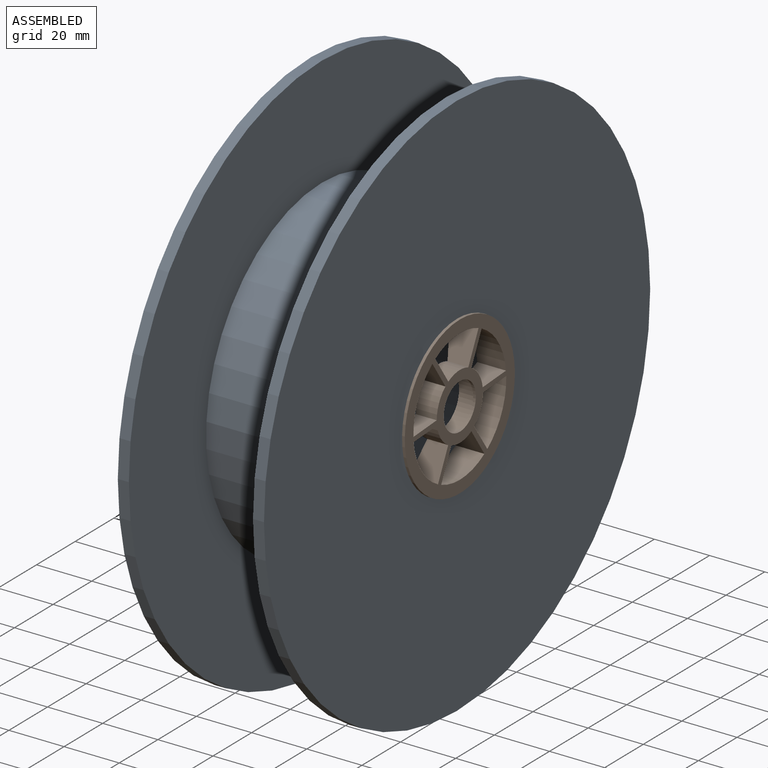
[diagram: assembled view]
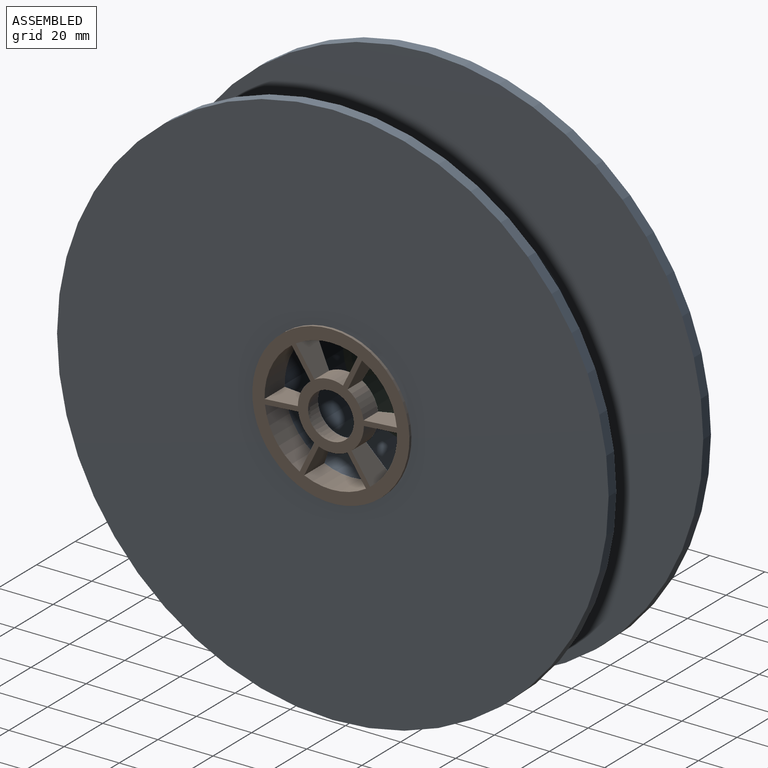
[diagram: assembled view, second angle]
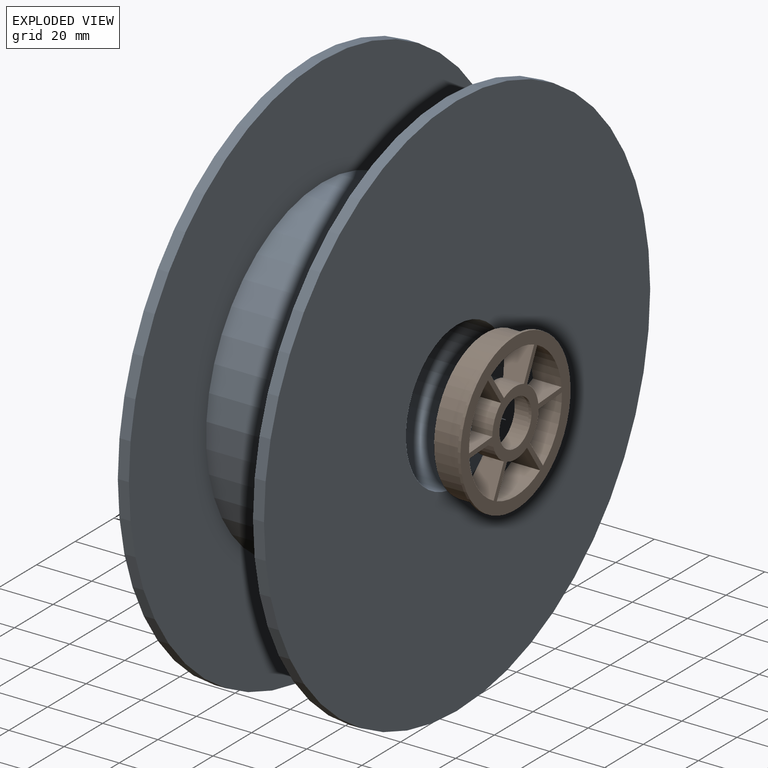
[diagram: exploded view]
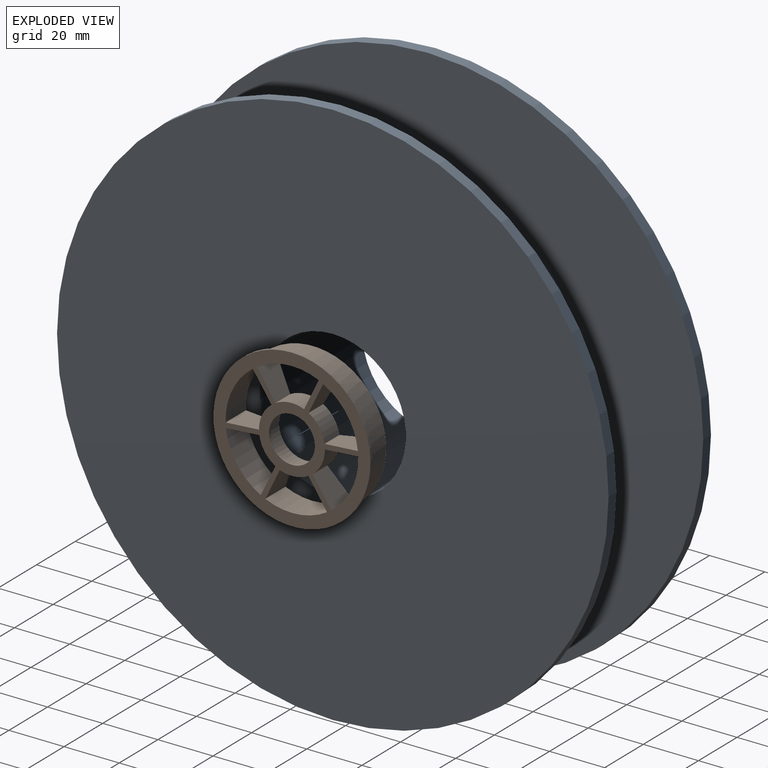
[diagram: exploded view, second angle]
ASSEMBLY  parts=3 mates=4
PART A: 8 faces, bbox 53x200x200 mm
  f0: cylinder r=100mm len=200mm, axis (-1,0,0), area 2513.3mm2, adj f1,f3
  f1: plane 200x200mm, normal (1,0,0), area 29209.7mm2, adj f0,f7
  f2: cylinder r=60mm len=120mm, axis (-1,0,0), area 16964.6mm2, adj f3,f4
  f3: plane 200x200mm, normal (-1,0,0), area 20106.2mm2, adj f0,f2
  f4: plane 200x200mm, normal (1,0,0), area 20106.2mm2, adj f2,f6
  f5: plane 200x200mm, normal (-1,0,0), area 29209.7mm2, adj f6,f7
  f6: cylinder r=100mm len=200mm, axis (-1,0,0), area 2513.3mm2, adj f4,f5
  f7: cylinder r=26.5mm len=53mm, axis (1,0,0), area 8824.7mm2, adj f1,f5
PART B: 32 faces, bbox 11.2x57.2x57.2 mm
  f0: cylinder r=26.45mm len=52.9mm, axis (1,0,0), area 1659.9mm2, adj f28,f31
  f1: cylinder r=9.57mm len=19.15mm, axis (1,0,0), area 361.3mm2, adj f29,f31
  f2: plane 12.32x10.65mm, normal (0,1,0), area 108.8mm2, adj f3,f5,f26,f31
  f3: cylinder r=11.97mm len=8.99mm, axis (-1,0,0), area 81.3mm2, adj f2,f4,f26,f31
  f4: plane 10.7x10.65mm, normal (0,-0.5,-0.87), area 108.8mm2, adj f3,f5,f26,f31
  f5: cylinder r=24.05mm len=19.46mm, axis (-1,0,0), area 243.7mm2, adj f2,f4,f26,f31
  f6: cylinder r=11.97mm len=10.38mm, axis (-1,0,0), area 81.3mm2, adj f7,f9,f26,f31
  f7: plane 10.7x10.65mm, normal (0,0.5,-0.87), area 108.8mm2, adj f6,f8,f26,f31
  f8: cylinder r=24.05mm len=22.47mm, axis (-1,0,0), area 243.7mm2, adj f7,f9,f26,f31
  f9: plane 10.7x10.65mm, normal (0,0.5,0.87), area 108.8mm2, adj f6,f8,f26,f31
  f10: cylinder r=11.97mm len=10.38mm, axis (-1,0,0), area 81.3mm2, adj f11,f13,f26,f31
  f11: plane 10.7x10.65mm, normal (0,-0.5,0.87), area 108.8mm2, adj f10,f12,f26,f31
  f12: cylinder r=24.05mm len=22.47mm, axis (-1,0,0), area 243.7mm2, adj f11,f13,f26,f31
  f13: plane 10.7x10.65mm, normal (0,-0.5,-0.87), area 108.8mm2, adj f10,f12,f26,f31
  f14: cylinder r=11.97mm len=8.99mm, axis (-1,0,0), area 81.3mm2, adj f15,f17,f26,f31
  f15: plane 12.32x10.65mm, normal (0,-1,0), area 108.8mm2, adj f14,f16,f26,f31
  f16: cylinder r=24.05mm len=19.46mm, axis (-1,0,0), area 243.7mm2, adj f15,f17,f26,f31
  f17: plane 10.7x10.65mm, normal (0,0.5,-0.87), area 108.8mm2, adj f14,f16,f26,f31
  f18: cylinder r=11.97mm len=8.99mm, axis (-1,0,0), area 81.3mm2, adj f19,f21,f26,f31
  f19: plane 10.7x10.65mm, normal (0,0.5,0.87), area 108.8mm2, adj f18,f20,f26,f31
  f20: cylinder r=24.05mm len=19.46mm, axis (-1,0,0), area 243.7mm2, adj f19,f21,f26,f31
  f21: plane 12.32x10.65mm, normal (0,-1,0), area 108.8mm2, adj f18,f20,f26,f31
  f22: cylinder r=11.97mm len=8.99mm, axis (-1,0,0), area 81.3mm2, adj f23,f25,f26,f31
  f23: plane 12.32x10.65mm, normal (0,1,0), area 108.8mm2, adj f22,f24,f26,f31
  f24: cylinder r=24.05mm len=19.46mm, axis (-1,0,0), area 243.7mm2, adj f23,f25,f26,f31
  f25: plane 10.7x10.65mm, normal (0,-0.5,0.87), area 108.8mm2, adj f22,f24,f26,f31
  f26: plane 57x57mm, normal (1,0,0), area 1099.2mm2, adj f2,f3,f4,f5,f6,f7,f8,f9
  f27: cylinder r=28.5mm len=57mm, axis (-1,0,0), area 179.1mm2, adj f26,f28
  f28: plane 57x57mm, normal (-1,0,0), area 353.9mm2, adj f0,f27
  f29: plane 19.15x19.15mm, normal (-1,0,0), area 71.6mm2, adj f1,f30
  f30: cylinder r=8.3mm len=16.6mm, axis (-1,0,0), area 52.2mm2, adj f26,f29
  f31: cone r=9.55mm half-angle=76.7deg, axis (-1,0,0), area 703.6mm2, adj f0,f1,f2,f3,f4,f5,f6,f7
PART C: same geometry as B
PLACE A at identity fixed
PLACE B rot(axis=(-1,0,0),25.9deg) t=(26.5,0,0)mm
PLACE C rot(axis=(0,0.05,1),180deg) t=(-26.5,0,0)mm
MATE cylindrical C.f0 <-> A.f7  axis (-1,0,0) through (-21.51,0,0)mm
MATE planar A.f0 <-> C.f27  axis (-1,0,0) through (-26.5,0,0)mm
MATE cylindrical A.f7 <-> B.f0  axis (1,0,0) through (0,0,0)mm
MATE planar A.f0 <-> B.f27  axis (1,0,0) through (26.5,0,0)mm
